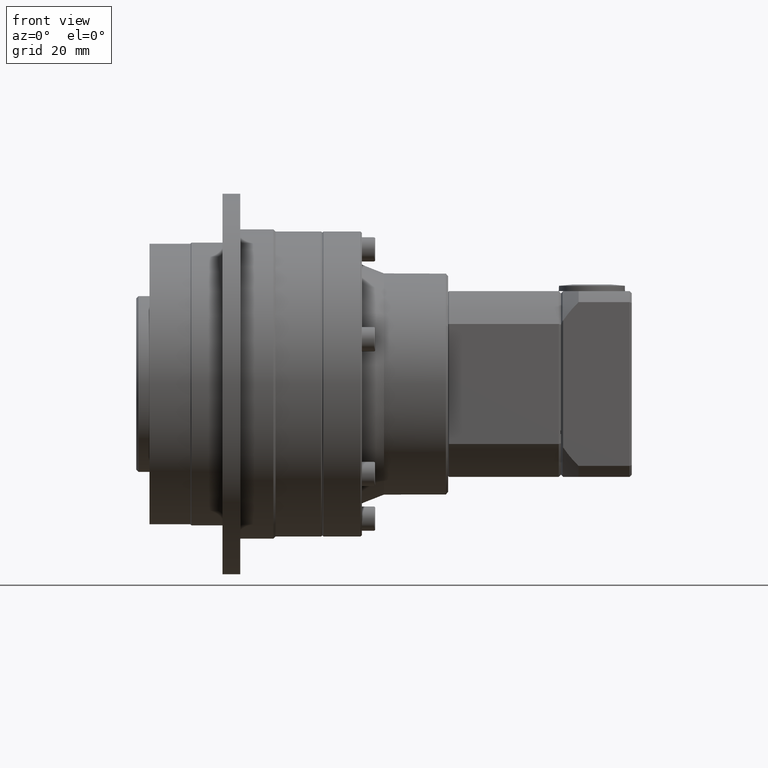
[diagram: clean part render]
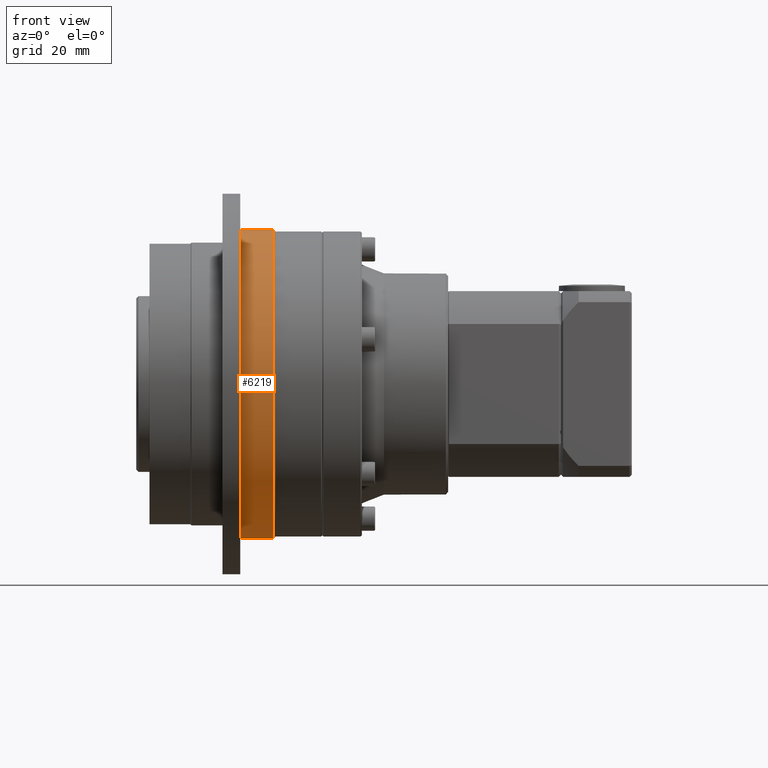
[diagram: same view with one face highlighted and labeled with its STEP entity id]
A machine part, front view. The second image highlights one B-rep face of the part: STEP entity #6219.
In plain terms, the highlighted cylindrical surface (bore or boss wall) has radius 35 mm, axis along (1, 0, 0).
Its self-contained STEP definition (entity closure, byte-faithful):
#1125=FACE_BOUND('',#2104,.T.);
#1538=FACE_OUTER_BOUND('',#2103,.T.);
#2103=EDGE_LOOP('',(#5097));
#2104=EDGE_LOOP('',(#5098));
#2626=CIRCLE('',#6911,35.);
#2627=CIRCLE('',#6913,35.);
#3121=VERTEX_POINT('',#10552);
#3122=VERTEX_POINT('',#10555);
#3835=EDGE_CURVE('',#3121,#3121,#2626,.T.);
#3836=EDGE_CURVE('',#3122,#3122,#2627,.T.);
#5097=ORIENTED_EDGE('',*,*,#3835,.F.);
#5098=ORIENTED_EDGE('',*,*,#3836,.T.);
#5598=CYLINDRICAL_SURFACE('',#6912,35.);
#6219=ADVANCED_FACE('',(#1538,#1125),#5598,.T.);
#6911=AXIS2_PLACEMENT_3D('',#10553,#8432,#8433);
#6912=AXIS2_PLACEMENT_3D('',#10554,#8434,#8435);
#6913=AXIS2_PLACEMENT_3D('',#10556,#8436,#8437);
#8432=DIRECTION('center_axis',(1.,6.66133814775025E-16,5.41298131925173E-16));
#8433=DIRECTION('ref_axis',(5.41298131925257E-16,-1.25885413204685E-13,
-1.));
#8434=DIRECTION('center_axis',(1.,6.66133814775025E-16,5.41298131925173E-16));
#8435=DIRECTION('ref_axis',(-6.66133814774957E-16,1.,-1.25885413204685E-13));
#8436=DIRECTION('center_axis',(1.,6.66133814775025E-16,5.41298131925173E-16));
#8437=DIRECTION('ref_axis',(5.41298131925257E-16,-1.25885413204685E-13,
-1.));
#10552=CARTESIAN_POINT('',(7.48376053270697,15.7497035076324,20.3816875810011));
#10553=CARTESIAN_POINT('Origin',(7.48376053270699,-19.2502964923676,20.3816875810055));
#10554=CARTESIAN_POINT('Origin',(3.73376053270699,-19.2502964923677,20.3816875810055));
#10555=CARTESIAN_POINT('',(-0.0162394672930266,15.7497035076323,20.3816875810011));
#10556=CARTESIAN_POINT('Origin',(-0.0162394672930044,-19.2502964923677,
20.3816875810055));